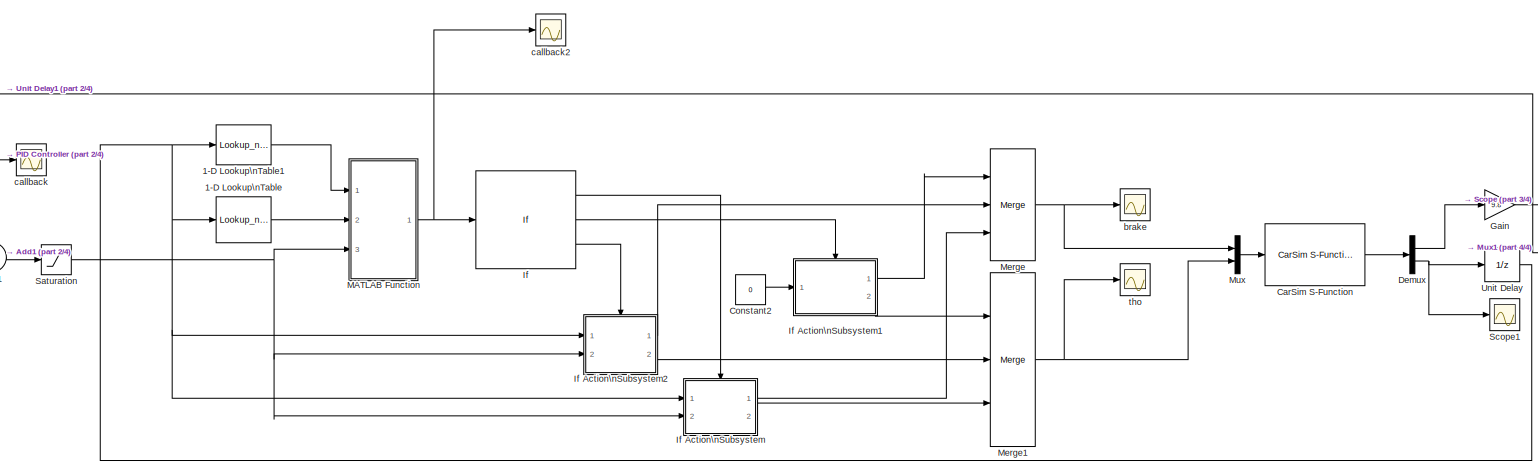
[diagram: root canvas - part 1/4, center side, full height]
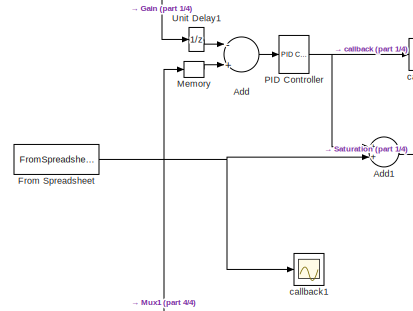
[diagram: root canvas - part 2/4, middle left region]
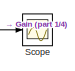
[diagram: root canvas - part 3/4, middle right region]
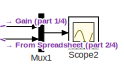
[diagram: root canvas - part 4/4, middle right region]
MODEL NI
KIND model
BLOCK [Lookup_n-D] 1-D Lookup\nTable
  BreakpointsForDimension1 = xlsread('tho0brk0','sheet2','A2:A29')
  InternalRulePriority = Speed
  NumberOfTableDimensions = 1
  Ports = [1, 1]
  RndMeth = Simplest
  SID = 3
  Table = xlsread('tho0brk0','sheet2','B2:B29')
BLOCK [Lookup_n-D] 1-D Lookup\nTable1
  BreakpointsForDimension1 = xlsread('tho0brk0','sheet3','A2:A29')
  InternalRulePriority = Speed
  NumberOfTableDimensions = 1
  Ports = [1, 1]
  RndMeth = Simplest
  SID = 6
  Table = xlsread('tho0brk0','sheet3','B2:B29')
BLOCK [Sum] Add
  InputSameDT = off
  Inputs = -+
  OutDataTypeStr = Inherit: Inherit via internal rule
  Ports = [2, 1]
  SID = 87
  SaturateOnIntegerOverflow = off
BLOCK [Sum] Add1
  InputSameDT = off
  OutDataTypeStr = Inherit: Inherit via internal rule
  Ports = [2, 1]
  SID = 90
  SaturateOnIntegerOverflow = off
BLOCK [Reference] CarSim S-Function  REF=Solver_SF/CarSim S-Function
  AttributesFormatString = Vehicle Code: %<VehicleCode>
  Ports = [1, 1]
  Priority = 1
  SID = 78
  SIMFILE = simfile
  SourceBlock = Solver_SF/CarSim S-Function
  SourceType = Vehicle math model library
  VehicleCode = i_i
BLOCK [Constant] Constant2
  SID = 55
  Value = 0
BLOCK [Demux] Demux
  DisplayOption = bar
  Outputs = 2
  Ports = [1, 2]
  SID = 74
BLOCK [FromSpreadsheet] From Spreadsheet
  FileName = <userpath><path>
  Ports = [0, 1]
  SID = 104
BLOCK [Gain] Gain
  Gain = 9.8
  OutDataTypeStr = Inherit: Inherit via internal rule
  ParamDataTypeStr = Inherit: Inherit via internal rule
  SID = 84
  SaturateOnIntegerOverflow = off
BLOCK [If] If
  ElseIfExpressions = u1 ==0
  Ports = [1, 3]
  SID = 42
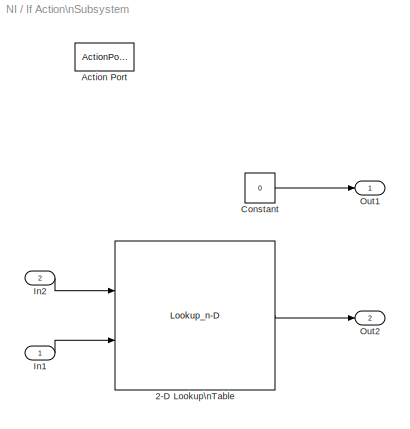
BLOCK [SubSystem] If Action\nSubsystem
  Ports = [2, 2, 0, 0, 0, 0, 0, 1]
  RequestExecContextInheritance = off
  SID = 43
  TreatAsAtomicUnit = on
  Variant = off
BLOCK [Lookup_n-D] If Action\nSubsystem/2-D Lookup\nTable
  BreakpointsForDimension1 = xlsread('tho-v-a','sheet4','A3:A34')
  BreakpointsForDimension2 = xlsread('tho-v-a','sheet4','B2:P2')
  InternalRulePriority = Speed
  Ports = [2, 1]
  RndMeth = Simplest
  SID = 63
  Table = xlsread('tho-v-a','sheet4','B3:P34')
BLOCK [ActionPort] If Action\nSubsystem/Action Port
  ActionType = then
  SID = 45
BLOCK [Constant] If Action\nSubsystem/Constant
  SID = 64
  Value = 0
BLOCK [Inport] If Action\nSubsystem/In1
  IconDisplay = Port number
  SID = 44
BLOCK [Inport] If Action\nSubsystem/In2
  IconDisplay = Port number
  Port = 2
  SID = 62
BLOCK [Outport] If Action\nSubsystem/Out1
  IconDisplay = Port number
  SID = 46
BLOCK [Outport] If Action\nSubsystem/Out2
  IconDisplay = Port number
  Port = 2
  SID = 61
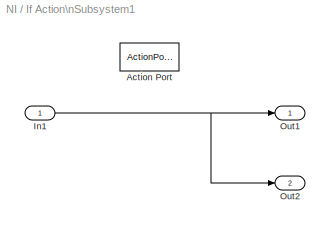
BLOCK [SubSystem] If Action\nSubsystem1
  Ports = [1, 2, 0, 0, 0, 0, 0, 1]
  RequestExecContextInheritance = off
  SID = 47
  TreatAsAtomicUnit = on
  Variant = off
BLOCK [ActionPort] If Action\nSubsystem1/Action Port
  ActionType = elseif
  SID = 49
BLOCK [Inport] If Action\nSubsystem1/In1
  IconDisplay = Port number
  SID = 48
BLOCK [Outport] If Action\nSubsystem1/Out1
  IconDisplay = Port number
  SID = 50
BLOCK [Outport] If Action\nSubsystem1/Out2
  IconDisplay = Port number
  Port = 2
  SID = 56
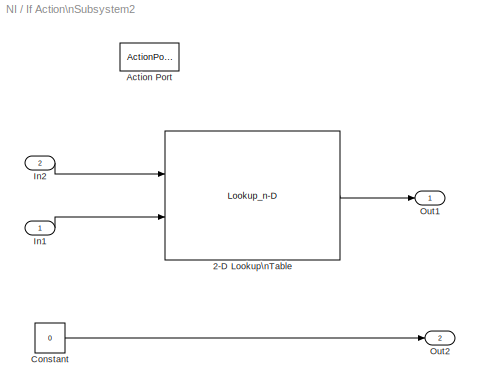
BLOCK [SubSystem] If Action\nSubsystem2
  Ports = [2, 2, 0, 0, 0, 0, 0, 1]
  RequestExecContextInheritance = off
  SID = 51
  TreatAsAtomicUnit = on
  Variant = off
BLOCK [Lookup_n-D] If Action\nSubsystem2/2-D Lookup\nTable
  BreakpointsForDimension1 = xlsread('brk-v-a','sheet3','A3:A28')
  BreakpointsForDimension2 = xlsread('brk-v-a','sheet3','B2:P2')
  InternalRulePriority = Speed
  Ports = [2, 1]
  RndMeth = Simplest
  SID = 58
  Table = xlsread('brk-v-a','sheet3','B3:P28')
BLOCK [ActionPort] If Action\nSubsystem2/Action Port
  ActionType = else
  SID = 53
BLOCK [Constant] If Action\nSubsystem2/Constant
  SID = 60
  Value = 0
BLOCK [Inport] If Action\nSubsystem2/In1
  IconDisplay = Port number
  SID = 52
BLOCK [Inport] If Action\nSubsystem2/In2
  IconDisplay = Port number
  Port = 2
  SID = 57
BLOCK [Outport] If Action\nSubsystem2/Out1
  IconDisplay = Port number
  SID = 54
BLOCK [Outport] If Action\nSubsystem2/Out2
  IconDisplay = Port number
  Port = 2
  SID = 59
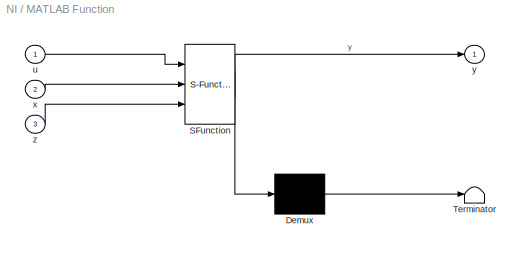
BLOCK [SubSystem] MATLAB Function
  ErrorFcn = Stateflow.Translate.translate
  PermitHierarchicalResolution = ExplicitOnly
  Ports = [3, 1]
  RequestExecContextInheritance = off
  SFBlockType = MATLAB Function
  SID = 8
  TreatAsAtomicUnit = on
  Variant = off
BLOCK [Demux] MATLAB Function/ Demux 
  Outputs = 1
  Ports = [1, 1]
  SID = 8::20
BLOCK [S-Function] MATLAB Function/ SFunction 
  EnableBusSupport = on
  FunctionName = sf_sfun
  PortCounts = [3 2]
  Ports = [3, 2]
  SFcnIsStateOwnerBlock = off
  SFunctionDeploymentMode = off
  SID = 8::19
  Tag = Stateflow S-Function NI 2
BLOCK [Terminator] MATLAB Function/ Terminator 
  SID = 8::21
BLOCK [Inport] MATLAB Function/u
  IconDisplay = Port number
  SID = 8::1
BLOCK [Inport] MATLAB Function/x
  IconDisplay = Port number
  Port = 2
  SID = 8::22
BLOCK [Outport] MATLAB Function/y
  IconDisplay = Port number
  SID = 8::5
BLOCK [Inport] MATLAB Function/z
  IconDisplay = Port number
  Port = 3
  SID = 8::25
BLOCK [Memory] Memory
  SID = 88
BLOCK [Merge] Merge
  Inputs = 3
  Ports = [3, 1]
  SID = 65
BLOCK [Merge] Merge1
  Inputs = 3
  Ports = [3, 1]
  SID = 66
BLOCK [Mux] Mux
  DisplayOption = bar
  Inputs = 2
  Ports = [2, 1]
  SID = 75
BLOCK [Mux] Mux1
  DisplayOption = bar
  Inputs = 2
  Ports = [2, 1]
  SID = 101
BLOCK [Reference] PID Controller  REF=simulink/Continuous/PID Controller
  AntiWindupMode = none
  Controller = PID
  ControllerParametersSource = internal
  D = 0
  DGainOutDataTypeStr = Inherit: Inherit via internal rule
  DOutDataTypeStr = Inherit: Inherit via internal rule
  DOutMax = []
  DOutMin = []
  DParamDataTypeStr = Inherit: Inherit via internal rule
  DParamMax = []
  DParamMin = []
  DProdOutDataTypeStr = Inherit: Inherit via internal rule
  DifferentiatorICPrevScaledInput = 0
  DifferentiatorOutDataTypeStr = Inherit: Inherit via internal rule
  DifferentiatorOutMax = []
  DifferentiatorOutMin = []
  DivideOutDataTypeStr = Inherit: Inherit via internal rule
  DivideOutMax = []
  DivideOutMin = []
  ExternalReset = none
  FilterContinuousStateAttributes = ''
  FilterDiffDenAccumDataTypeStr = Inherit: Inherit via internal rule
  FilterDiffDenProductOutputDataTypeStr = Inherit: Inherit via internal rule
  FilterDiffNumAccumDataTypeStr = Inherit: Inherit via internal rule
  FilterDiffNumProductOutputDataTypeStr = Inherit: Inherit via internal rule
  FilterDiffOutCoefDataTypeStr = Inherit: Inherit via internal rule
  FilterDiffOutCoefMax = []
  FilterDiffOutCoefMin = []
  FilterMethod = Forward Euler
  FilterOutDataTypeStr = Inherit: Inherit via internal rule
  FilterOutMax = []
  FilterOutMin = []
  FilterRTWStateStorageClass = Auto
  FilterStateMustResolveToSignalObject = off
  Form = Parallel
  I = 0
  IGainOutDataTypeStr = Inherit: Inherit via internal rule
  IOutDataTypeStr = Inherit: Inherit via internal rule
  IOutMax = []
  IOutMin = []
  IParamDataTypeStr = Inherit: Inherit via internal rule
  IParamMax = []
  IParamMin = []
  IProdOutDataTypeStr = Inherit: Inherit via internal rule
  IgnoreLimit = off
  InitialConditionForFilter = 0
  InitialConditionForIntegrator = 0
  InitialConditionSetting = State (most efficient)
  InitialConditionSource = internal
  IntegratorContinuousStateAttributes = ''
  IntegratorMethod = Forward Euler
  IntegratorOutDataTypeStr = Inherit: Inherit via internal rule
  IntegratorOutMax = []
  IntegratorOutMin = []
  IntegratorRTWStateStorageClass = Auto
  IntegratorStateMustResolveToSignalObject = off
  Kb = 1
  KbOutDataTypeStr = Inherit: Inherit via internal rule
  KbOutMax = []
  KbOutMin = []
  KbParamDataTypeStr = Inherit: Inherit via internal rule
  KbParamMax = []
  KbParamMin = []
  Kt = 1
  KtOutDataTypeStr = Inherit: Inherit via internal rule
  KtOutMax = []
  KtOutMin = []
  KtParamDataTypeStr = Inherit: Inherit via internal rule
  KtParamMax = []
  KtParamMin = []
  LimitOutput = off
  LinearizeAsGain = on
  LockScale = off
  LowerSaturationLimit = -inf
  N = 100
  NGainOutDataTypeStr = Inherit: Inherit via internal rule
  NOutDataTypeStr = Inherit: Inherit via internal rule
  NOutMax = []
  NOutMin = []
  NParamDataTypeStr = Inherit: Inherit via internal rule
  NParamMax = []
  NParamMin = []
  NProdOutDataTypeStr = Inherit: Inherit via internal rule
  P = 2.2
  PGainOutDataTypeStr = Inherit: Inherit via internal rule
  POutDataTypeStr = Inherit: Inherit via internal rule
  POutMax = []
  POutMin = []
  PParamDataTypeStr = Inherit: Inherit via internal rule
  PParamMax = []
  PParamMin = []
  PProdOutDataTypeStr = Inherit: Inherit via internal rule
  Ports = [1, 1]
  ReciprocalOutDataTypeStr = Inherit: Inherit via internal rule
  ReciprocalOutMax = []
  ReciprocalOutMin = []
  RndMeth = Floor
  SID = 97
  SampleTime = -1
  SaturateOnIntegerOverflow = off
  SaturationOutDataTypeStr = Inherit: Same as input
  SaturationOutMax = []
  SaturationOutMin = []
  SourceBlock = simulink/Continuous/PID Controller
  SourceProductBaseCode = SL
  SourceProductName = Simulink
  SourceType = PID 1dof
  SumAccumDataTypeStr = Inherit: Inherit via internal rule
  SumDAccumDataTypeStr = Inherit: Inherit via internal rule
  SumDOutDataTypeStr = Inherit: Inherit via internal rule
  SumDOutMax = []
  SumDOutMin = []
  SumDenAccumDataTypeStr = Inherit: Inherit via internal rule
  SumDenOutDataTypeStr = Inherit: Inherit via internal rule
  SumDenOutMax = []
  SumDenOutMin = []
  SumI1AccumDataTypeStr = Inherit: Inherit via internal rule
  SumI1OutDataTypeStr = Inherit: Inherit via internal rule
  SumI1OutMax = []
  SumI1OutMin = []
  SumI2AccumDataTypeStr = Inherit: Inherit via internal rule
  SumI2OutDataTypeStr = Inherit: Inherit via internal rule
  SumI2OutMax = []
  SumI2OutMin = []
  SumI3AccumDataTypeStr = Inherit: Inherit via internal rule
  SumI3OutDataTypeStr = Inherit: Inherit via internal rule
  SumI3OutMax = []
  SumI3OutMin = []
  SumNumAccumDataTypeStr = Inherit: Inherit via internal rule
  SumNumOutDataTypeStr = Inherit: Inherit via internal rule
  SumNumOutMax = []
  SumNumOutMin = []
  SumOutDataTypeStr = Inherit: Inherit via internal rule
  SumOutMax = []
  SumOutMin = []
  TimeDomain = Continuous-time
  TrackingMode = off
  TunerSelectOption = Transfer Function Based (PID Tuner App)
  UpperSaturationLimit = inf
  UseFilter = on
  ZeroCross = on
BLOCK [Saturate] Saturation
  InputPortMap = u0
  LowerLimit = -5
  Ports = [1, 1]
  SID = 107
  UpperLimit = 5.4
BLOCK [Scope] Scope
  NumInputPorts = 1
  Ports = [1]
  SID = 76
  ScopeSpecificationString = Simulink.scopes.TimeScopeBlockCfg('CurrentConfiguration', extmgr.ConfigurationSet(extmgr.Configuration('Core','General UI',true),extmgr.Configuration('Core','Source UI',true),extmgr.Configuration('Sources','WiredSimulink',true,'DataLoggingVariableName','ScopeData1'),extmgr.Configuration('Visuals','Time Domain',true,'SerializedDisplays',{struct('MinYLimReal','-4.15184','MaxYLimReal','3.83901','YLab...<+1745ch>
BLOCK [Scope] Scope1
  NumInputPorts = 1
  Ports = [1]
  SID = 85
  ScopeSpecificationString = Simulink.scopes.TimeScopeBlockCfg('CurrentConfiguration', extmgr.ConfigurationSet(extmgr.Configuration('Core','General UI',true),extmgr.Configuration('Core','Source UI',true),extmgr.Configuration('Sources','WiredSimulink',true,'DataLoggingVariableName','ScopeData1'),extmgr.Configuration('Visuals','Time Domain',true,'SerializedDisplays',{struct('MinYLimReal','-13.22906','MaxYLimReal','117.99126','Y...<+1761ch>
BLOCK [Scope] Scope2
  NumInputPorts = 1
  Ports = [1]
  SID = 102
  ScopeSpecificationString = Simulink.scopes.TimeScopeBlockCfg('CurrentConfiguration', extmgr.ConfigurationSet(extmgr.Configuration('Core','General UI',true),extmgr.Configuration('Core','Source UI',true),extmgr.Configuration('Sources','WiredSimulink',true,'DataLoggingVariableName','ScopeData1'),extmgr.Configuration('Visuals','Time Domain',true,'SerializedDisplays',{struct('MinYLimReal','-4.39233','MaxYLimReal','3.03829','YLab...<+1443ch>
BLOCK [UnitDelay] Unit Delay
  InputProcessing = Elements as channels (sample based)
  SID = 83
  SampleTime = -1
BLOCK [UnitDelay] Unit Delay1
  InputProcessing = Elements as channels (sample based)
  SID = 89
  SampleTime = -1
BLOCK [Scope] brake
  NumInputPorts = 1
  Ports = [1]
  SID = 68
  ScopeSpecificationString = Simulink.scopes.TimeScopeBlockCfg('CurrentConfiguration', extmgr.ConfigurationSet(extmgr.Configuration('Core','General UI',true),extmgr.Configuration('Core','Source UI',true),extmgr.Configuration('Sources','WiredSimulink',true,'DataLoggingVariableName','ScopeData1'),extmgr.Configuration('Visuals','Time Domain',true,'SerializedDisplays',{struct('MinYLimReal','-0.25','MaxYLimReal','2.25','YLabelReal...<+1346ch>
BLOCK [Scope] callback
  NumInputPorts = 1
  Ports = [1]
  SID = 92
  ScopeSpecificationString = Simulink.scopes.TimeScopeBlockCfg('CurrentConfiguration', extmgr.ConfigurationSet(extmgr.Configuration('Core','General UI',true),extmgr.Configuration('Core','Source UI',true),extmgr.Configuration('Sources','WiredSimulink',true,'DataLoggingVariableName','ScopeData1'),extmgr.Configuration('Visuals','Time Domain',true,'SerializedDisplays',{struct('MinYLimReal','-8.83295','MaxYLimReal','3.42716','YLab...<+1399ch>
BLOCK [Scope] callback1
  NumInputPorts = 1
  Ports = [1]
  SID = 105
  ScopeSpecificationString = Simulink.scopes.TimeScopeBlockCfg('CurrentConfiguration', extmgr.ConfigurationSet(extmgr.Configuration('Core','General UI',true),extmgr.Configuration('Core','Source UI',true),extmgr.Configuration('Sources','WiredSimulink',true,'DataLoggingVariableName','ScopeData1'),extmgr.Configuration('Visuals','Time Domain',true,'SerializedDisplays',{struct('MinYLimReal','-3.625','MaxYLimReal','2.625','YLabelRe...<+1389ch>
BLOCK [Scope] callback2
  NumInputPorts = 1
  Ports = [1]
  SID = 106
  ScopeSpecificationString = Simulink.scopes.TimeScopeBlockCfg('CurrentConfiguration', extmgr.ConfigurationSet(extmgr.Configuration('Core','General UI',true),extmgr.Configuration('Core','Source UI',true),extmgr.Configuration('Sources','WiredSimulink',true,'DataLoggingVariableName','ScopeData2'),extmgr.Configuration('Visuals','Time Domain',true,'SerializedDisplays',{struct('MinYLimReal','-1.25','MaxYLimReal','1.25','YLabelReal...<+1417ch>
BLOCK [Scope] tho
  NumInputPorts = 1
  Ports = [1]
  SID = 67
  ScopeSpecificationString = Simulink.scopes.TimeScopeBlockCfg('CurrentConfiguration', extmgr.ConfigurationSet(extmgr.Configuration('Core','General UI',true),extmgr.Configuration('Core','Source UI',true),extmgr.Configuration('Sources','WiredSimulink',true),extmgr.Configuration('Visuals','Time Domain',true,'SerializedDisplays',{struct('MinYLimReal','-0.10113','MaxYLimReal','0.91013','YLabelReal','','MinYLimMag','0.00000','MaxY...<+1359ch>
LINE 1-D Lookup\nTable1:1 -> MATLAB Function:1
LINE 1-D Lookup\nTable:1 -> MATLAB Function:2
LINE Add1:1 -> Saturation:1
LINE Add:1 -> PID Controller:1
LINE CarSim S-Function:1 -> Demux:1
LINE Constant2:1 -> If Action\nSubsystem1:1
LINE Demux:1 -> Gain:1
NET Demux:2 -> Scope1:1, Unit Delay:1
NET From Spreadsheet:1 -> Add1:2, Memory:1, Mux1:2, callback1:1
NET Gain:1 -> Mux1:1, Scope:1, Unit Delay1:1
LINE If Action\nSubsystem/2-D Lookup\nTable:1 -> If Action\nSubsystem/Out2:1
LINE If Action\nSubsystem/Constant:1 -> If Action\nSubsystem/Out1:1
LINE If Action\nSubsystem/In1:1 -> If Action\nSubsystem/2-D Lookup\nTable:2
LINE If Action\nSubsystem/In2:1 -> If Action\nSubsystem/2-D Lookup\nTable:1
NET If Action\nSubsystem1/In1:1 -> If Action\nSubsystem1/Out1:1, If Action\nSubsystem1/Out2:1
LINE If Action\nSubsystem1:1 -> Merge:1
LINE If Action\nSubsystem1:2 -> Merge1:1
LINE If Action\nSubsystem2/2-D Lookup\nTable:1 -> If Action\nSubsystem2/Out1:1
LINE If Action\nSubsystem2/Constant:1 -> If Action\nSubsystem2/Out2:1
LINE If Action\nSubsystem2/In1:1 -> If Action\nSubsystem2/2-D Lookup\nTable:2
LINE If Action\nSubsystem2/In2:1 -> If Action\nSubsystem2/2-D Lookup\nTable:1
LINE If Action\nSubsystem2:1 -> Merge:2
LINE If Action\nSubsystem2:2 -> Merge1:2
LINE If Action\nSubsystem:1 -> Merge:3
LINE If Action\nSubsystem:2 -> Merge1:3
LINE If:1 -> If Action\nSubsystem:ifaction
LINE If:2 -> If Action\nSubsystem1:ifaction
LINE If:3 -> If Action\nSubsystem2:ifaction
LINE MATLAB Function/ Demux :1 -> MATLAB Function/ Terminator :1
LINE MATLAB Function/ SFunction :1 -> MATLAB Function/ Demux :1
LINE MATLAB Function/ SFunction :2 -> MATLAB Function/y:1
LINE MATLAB Function/u:1 -> MATLAB Function/ SFunction :1
LINE MATLAB Function/x:1 -> MATLAB Function/ SFunction :2
LINE MATLAB Function/z:1 -> MATLAB Function/ SFunction :3
NET MATLAB Function:1 -> If:1, callback2:1
LINE Memory:1 -> Add:2
NET Merge1:1 -> Mux:2, tho:1
NET Merge:1 -> Mux:1, brake:1
LINE Mux1:1 -> Scope2:1
LINE Mux:1 -> CarSim S-Function:1
NET PID Controller:1 -> Add1:1, callback:1
NET Saturation:1 -> If Action\nSubsystem2:2, If Action\nSubsystem:2, MATLAB Function:3
LINE Unit Delay1:1 -> Add:1
NET Unit Delay:1 -> 1-D Lookup\nTable1:1, 1-D Lookup\nTable:1, If Action\nSubsystem2:1, If Action\nSubsystem:1
note: NET lines group one-source signal fan-out (src -> all destinations, sorted); 1:1 wires keep LINE
CHART MATLAB Function states=1 transitions=1
  STATE_LABEL 'eML_blk_kernel()'
note: 1 file-system path scrubbed to <path> (not preserved elsewhere — flat text is the only slx artifact)
